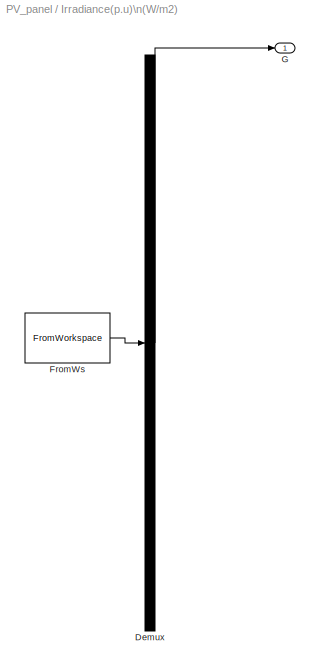
MODEL PV_panel
KIND model
BLOCK [Reference] Controlled Current\nSource  REF=fl_lib/Electrical/Electrical Sources/Controlled Current\nSource
  ClassName = controlled_current
  ComponentPath = foundation.electrical.sources.controlled_current
  DialogController = NetworkEngine.DynNeDlgSource
  FunctionWithSeparateData = off
  GeneratePreprocessorConditionals = off
  LocalVarDescs = |i|v
  LocalVarLogging = [0 0]
  LocalVarNames = |i|v
  Ports = [0, 0, 0, 0, 0, 1, 2]
  RTWMemSecDataConstants = Inherit from model
  RTWMemSecDataInternal = Inherit from model
  RTWMemSecDataParameters = Inherit from model
  RTWMemSecFuncExecute = Inherit from model
  RTWMemSecFuncInitTerm = Inherit from model
  SID = 362
  SchemaVersion = 1
  ShowPortLabels = FromPortIcon
  SourceBlock = fl_lib/Electrical/Electrical Sources/Controlled Current\nSource
  SourceType = Controlled Current\nSource
  SystemSampleTime = -1
  i_Log = off
  v_Log = off
BLOCK [Reference] Current Sensor  REF=fl_lib/Electrical/Electrical Sensors/Current Sensor
  ClassName = current
  ComponentPath = foundation.electrical.sensors.current
  DialogController = NetworkEngine.DynNeDlgSource
  FunctionWithSeparateData = off
  GeneratePreprocessorConditionals = off
  LocalVarDescs = |i1|v1
  LocalVarLogging = [0 0]
  LocalVarNames = |i1|v1
  Ports = [0, 0, 0, 0, 0, 1, 2]
  RTWMemSecDataConstants = Inherit from model
  RTWMemSecDataInternal = Inherit from model
  RTWMemSecDataParameters = Inherit from model
  RTWMemSecFuncExecute = Inherit from model
  RTWMemSecFuncInitTerm = Inherit from model
  SID = 363
  SchemaVersion = 1
  ShowPortLabels = FromPortIcon
  SourceBlock = fl_lib/Electrical/Electrical Sensors/Current Sensor
  SourceType = Current Sensor
  SystemSampleTime = -1
  i1_Log = off
  v1_Log = off
BLOCK [Reference] Diode  REF=elec_lib/Semiconductor\nDevices/Diode
  BV = Inf
  BV_unit = V
  CJ0 = 0
  CJ0_unit = pF
  C_PWL = 5
  C_PWL_unit = pF
  C_param = 1
  C_param_unit = 1
  ClassName = diode
  ComponentPath = elec.semiconductors.diode
  Cvec = [  3.5 1 0.4 ]
  Cvec_unit = pF
  DialogController = NetworkEngine.DynNeDlgSource
  FC = 0.5
  FC_unit = 1
  FunctionWithSeparateData = off
  GeneratePreprocessorConditionals = off
  Goff = 1e-08
  Goff_unit = S
  I1 = 0.07
  I12 = [  0.07 2.2 ]
  I12_unit = A
  I1_unit = A
  IS = 1.541765286972375e-008
  IS_unit = A
  LocalVarLogging = []
  Mgrad = 0.5
  Mgrad_unit = 1
  ModelType = 3
  ModelType_unit = 1
  Ports = [0, 0, 0, 0, 0, 1, 1]
  RS = 0.001
  RS_unit = Ohm
  RTWMemSecDataConstants = Inherit from model
  RTWMemSecDataInternal = Inherit from model
  RTWMemSecDataParameters = Inherit from model
  RTWMemSecFuncExecute = Inherit from model
  RTWMemSecFuncInitTerm = Inherit from model
  Ron = 0.3
  Ron_unit = Ohm
  Rz = 0.3
  Rz_unit = Ohm
  SID = 364
  SchemaVersion = 1
  ShowPortLabels = FromPortIcon
  SourceBlock = elec_lib/Semiconductor\nDevices/Diode
  SourceType = Diode
  SystemSampleTime = -1
  Tmeas = 25
  Tmeas_unit = C
  V1 = 0.7
  V12 = [  15 21 ]
  V12_unit = V
  V1_unit = V
  VJ = 1
  VJ_unit = V
  Vf = 0.6
  Vf_unit = V
  Vvec = [  0.1 10 100 ]
  Vvec_unit = V
  Vz = 50
  Vz_unit = V
  ec = 1
  ec_unit = 1
  prmExp = 1
  prmExp_unit = 1
BLOCK [Reference] Electrical Reference  REF=fl_lib/Electrical/Electrical Elements/Electrical Reference
  ClassName = reference
  ComponentPath = foundation.electrical.elements.reference
  DialogController = NetworkEngine.DynNeDlgSource
  FunctionWithSeparateData = off
  GeneratePreprocessorConditionals = off
  LocalVarDescs = |i
  LocalVarLogging = 0
  LocalVarNames = |i
  Ports = [0, 0, 0, 0, 0, 1]
  RTWMemSecDataConstants = Inherit from model
  RTWMemSecDataInternal = Inherit from model
  RTWMemSecDataParameters = Inherit from model
  RTWMemSecFuncExecute = Inherit from model
  RTWMemSecFuncInitTerm = Inherit from model
  SID = 365
  SchemaVersion = 1
  ShowPortLabels = FromPortIcon
  SourceBlock = fl_lib/Electrical/Electrical Elements/Electrical Reference
  SourceType = Electrical Reference
  SystemSampleTime = -1
  i_Log = off
BLOCK [Goto] Goto1
  GotoTag = V
  SID = 820
  TagVisibility = local
BLOCK [From] I1
  GotoTag = V
  SID = 819
BLOCK [Display] Id1
  Decimation = 1
  Lockdown = off
  Ports = [1]
  SID = 366
BLOCK [Display] Id2
  Decimation = 1
  Lockdown = off
  Ports = [1]
  SID = 367
BLOCK [Display] Id3
  Decimation = 1
  Lockdown = off
  Ports = [1]
  SID = 368
BLOCK [Display] Id5
  Decimation = 1
  Lockdown = off
  Ports = [1]
  SID = 369
BLOCK [SubSystem] Irradiance(p.u)\n(W//m2)
  ClipboardFcn = sigbuilder_block('clipboard');
  CloseFcn = sigbuilder_block('close');
  CopyFcn = sigbuilder_block('copy');
  DeleteFcn = sigbuilder_block('delete');
  FunctionWithSeparateData = off
  LoadFcn = sigbuilder_block('load');
  MaskCapabilities = slmaskedcaps(gcbh)
  MaskDescription = Sigbuilder GUI
  MaskDisplay = plot(0,0,100,100,[10,10,40,40,10],[80,20,20,80,80],[40,10],[50,50], [40,27,10],[65,72,56],[40,25,25,10],[28,28,43,43]);
  MaskHideContents = on
  MaskIconFrame = on
  MaskIconOpaque = off
  MaskIconRotate = port
  MaskIconUnits = autoscale
  MaskInitialization = if ~strcmp(get_param(bdroot(gcbh),'SimulationStatus'),'stopped') tuvar = sigbuilder_block('maskInit'); end
  MaskPortRotate = default
  MaskSelfModifiable = on
  MaskType = Sigbuilder block
  MinAlgLoopOccurrences = off
  ModelCloseFcn = sigbuilder_block('modelClose');
  NameChangeFcn = sigbuilder_block('namechange');
  Opaque = off
  OpenFcn = sigbuilder_block('open',[518.25 6 500.25 507 ]);
  Ports = [0, 1]
  PreSaveFcn = sigbuilder_block('preSave');
  PropExecContextOutsideSubsystem = off
  RTWSystemCode = Auto
  RequestExecContextInheritance = off
  SID = 370
  StartFcn = sigbuilder_block('start');
  StopFcn = sigbuilder_block('stop');
  Tag = STV Subsys
BLOCK [Demux] Irradiance(p.u)\n(W//m2)/Demux
  Outputs = 1
  Ports = [1, 1]
  SID = 370:1
  Tag = STV Demux
BLOCK [FromWorkspace] Irradiance(p.u)\n(W//m2)/FromWs
  SID = 370:2
  SampleTime = 0
  SigBuilderData = DataTag0
  Tag = STV FromWs
  VariableName = tuvar
  VnvData = DataTag1
  ZeroCross = on
BLOCK [Outport] Irradiance(p.u)\n(W//m2)/G
  IconDisplay = Port number
  SID = 370:3
  Tag = STV Outport
BLOCK [Reference] PS-Simulink\nConverter  REF=nesl_utility/PS-Simulink\nConverter
  AffineConversion = off
  DialogController = NetworkEngine.DynNeUtilDlgSource
  FunctionWithSeparateData = off
  GeneratePreprocessorConditionals = off
  LeftPortType = input
  PhysicalDomain = network_engine_domain
  Ports = [0, 1, 0, 0, 0, 1]
  RTWMemSecDataConstants = Inherit from model
  RTWMemSecDataInternal = Inherit from model
  RTWMemSecDataParameters = Inherit from model
  RTWMemSecFuncExecute = Inherit from model
  RTWMemSecFuncInitTerm = Inherit from model
  RightPortType = output
  SID = 412
  ShowPortLabels = FromPortIcon
  SourceBlock = nesl_utility/PS-Simulink\nConverter
  SourceType = PS-Simulink\nConverter
  SubClassName = ps_output
  SystemSampleTime = -1
  Unit = 1
BLOCK [Reference] PS-Simulink\nConverter1  REF=nesl_utility/PS-Simulink\nConverter
  AffineConversion = off
  DialogController = NetworkEngine.DynNeUtilDlgSource
  FunctionWithSeparateData = off
  GeneratePreprocessorConditionals = off
  LeftPortType = input
  PhysicalDomain = network_engine_domain
  Ports = [0, 1, 0, 0, 0, 1]
  RTWMemSecDataConstants = Inherit from model
  RTWMemSecDataInternal = Inherit from model
  RTWMemSecDataParameters = Inherit from model
  RTWMemSecFuncExecute = Inherit from model
  RTWMemSecFuncInitTerm = Inherit from model
  RightPortType = output
  SID = 413
  ShowPortLabels = FromPortIcon
  SourceBlock = nesl_utility/PS-Simulink\nConverter
  SourceType = PS-Simulink\nConverter
  SubClassName = ps_output
  SystemSampleTime = -1
  Unit = 1
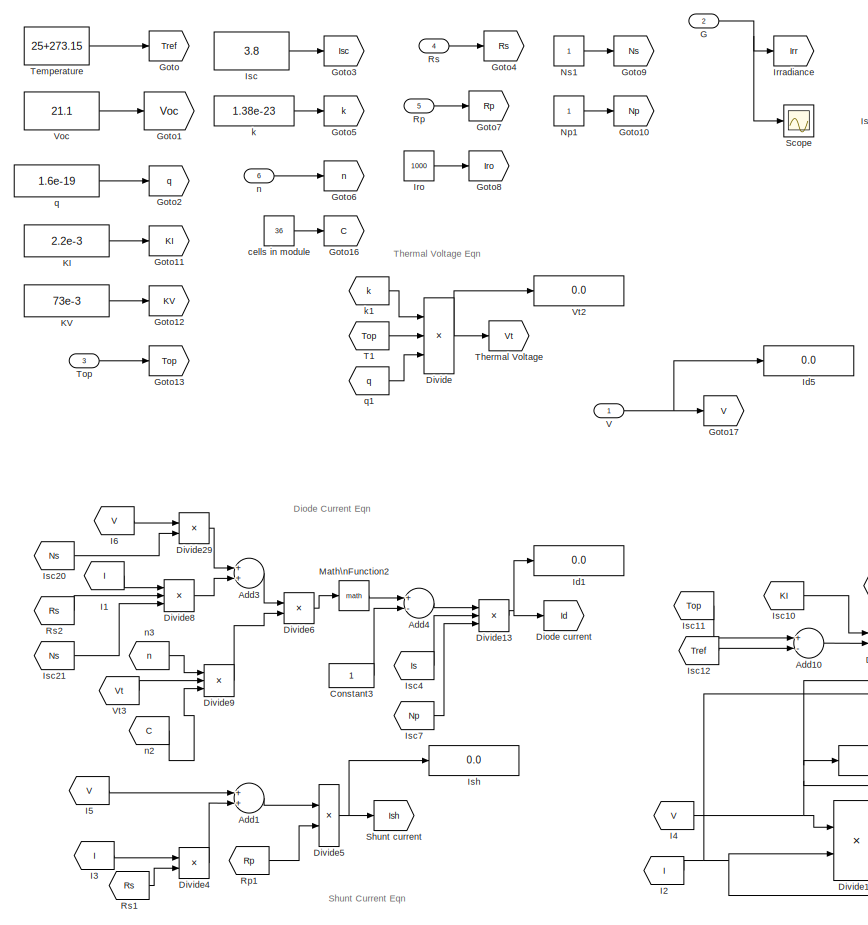
[diagram: PV panel - part 1/3, left side, full height]
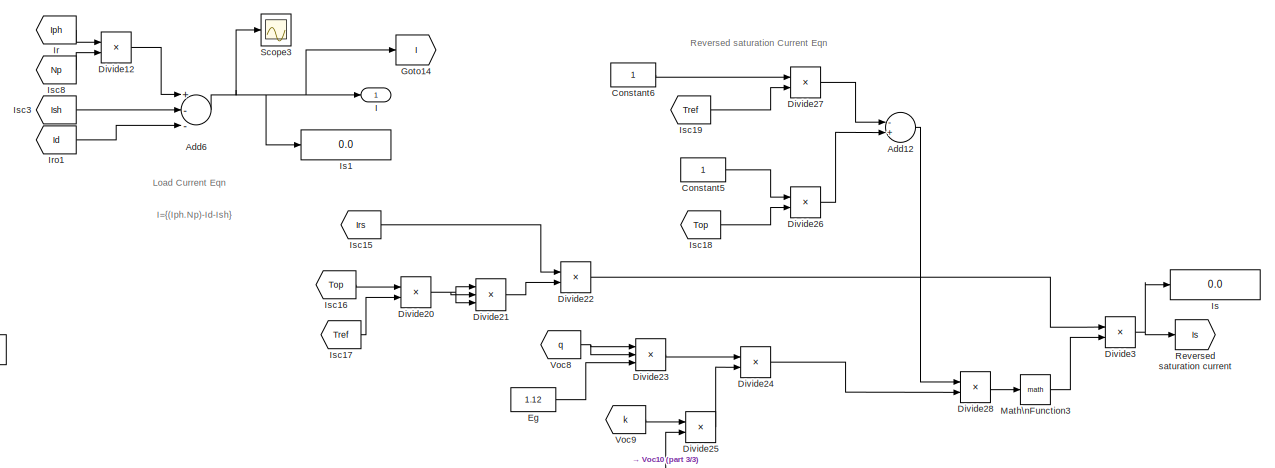
[diagram: PV panel - part 2/3, top right region]
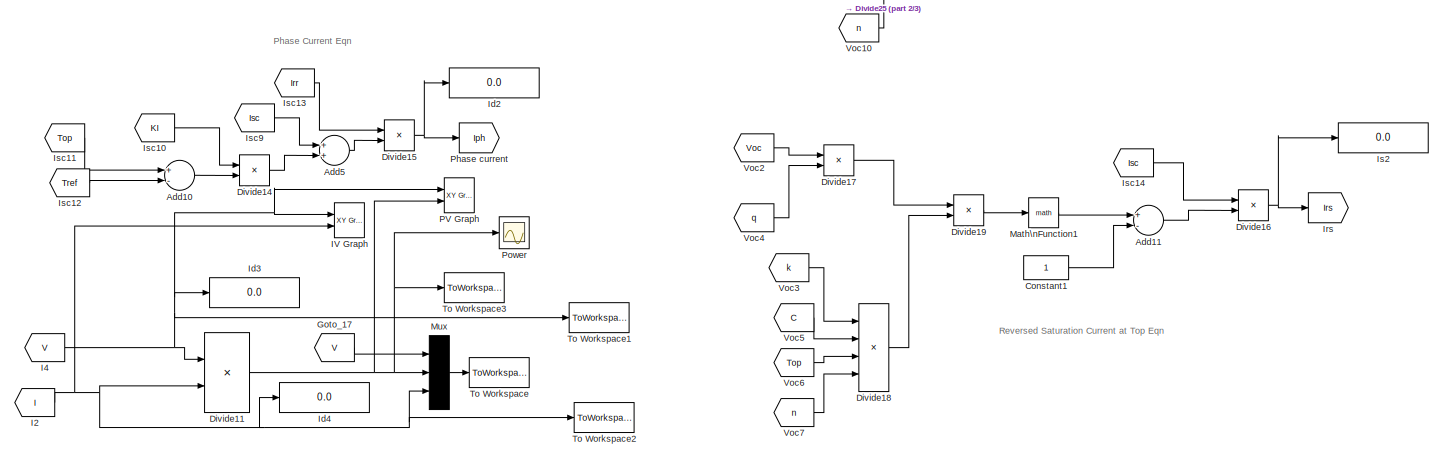
[diagram: PV panel - part 3/3, bottom center region]
BLOCK [SubSystem] PV panel
  FunctionWithSeparateData = off
  MaskHideContents = off
  MinAlgLoopOccurrences = off
  Opaque = off
  Ports = [6, 1]
  PropExecContextOutsideSubsystem = off
  RTWSystemCode = Auto
  RequestExecContextInheritance = off
  SID = 414
BLOCK [Goto] PV panel/                Reversed saturation current
  GotoTag = Is
  SID = 418
  TagVisibility = local
BLOCK [Sum] PV panel/Add1
  InputSameDT = off
  OutDataTypeStr = Inherit: Inherit via internal rule
  Ports = [2, 1]
  SID = 419
  SaturateOnIntegerOverflow = off
BLOCK [Sum] PV panel/Add10
  InputSameDT = off
  Inputs = +-
  OutDataTypeStr = Inherit: Inherit via internal rule
  Ports = [2, 1]
  SID = 420
  SaturateOnIntegerOverflow = off
BLOCK [Sum] PV panel/Add11
  InputSameDT = off
  Inputs = +-
  OutDataTypeStr = Inherit: Inherit via internal rule
  Ports = [2, 1]
  SID = 421
  SaturateOnIntegerOverflow = off
BLOCK [Sum] PV panel/Add12
  InputSameDT = off
  Inputs = -+
  OutDataTypeStr = Inherit: Inherit via internal rule
  Ports = [2, 1]
  SID = 422
  SaturateOnIntegerOverflow = off
BLOCK [Sum] PV panel/Add3
  InputSameDT = off
  OutDataTypeStr = Inherit: Inherit via internal rule
  Ports = [2, 1]
  SID = 423
  SaturateOnIntegerOverflow = off
BLOCK [Sum] PV panel/Add4
  InputSameDT = off
  Inputs = +-
  OutDataTypeStr = Inherit: Inherit via internal rule
  Ports = [2, 1]
  SID = 424
  SaturateOnIntegerOverflow = off
BLOCK [Sum] PV panel/Add5
  InputSameDT = off
  OutDataTypeStr = Inherit: Inherit via internal rule
  Ports = [2, 1]
  SID = 425
  SaturateOnIntegerOverflow = off
BLOCK [Sum] PV panel/Add6
  InputSameDT = off
  Inputs = +--
  OutDataTypeStr = Inherit: Inherit via internal rule
  Ports = [3, 1]
  SID = 426
  SaturateOnIntegerOverflow = off
BLOCK [Constant] PV panel/Constant1
  SID = 427
BLOCK [Constant] PV panel/Constant3
  SID = 428
BLOCK [Constant] PV panel/Constant5
  SID = 430
BLOCK [Constant] PV panel/Constant6
  SID = 431
BLOCK [Goto] PV panel/Diode current
  GotoTag = Id
  SID = 432
  TagVisibility = local
BLOCK [Product] PV panel/Divide
  InputSameDT = off
  Inputs = **/
  OutDataTypeStr = Inherit: Inherit via internal rule
  Ports = [3, 1]
  RndMeth = Floor
  SID = 433
  SaturateOnIntegerOverflow = off
BLOCK [Product] PV panel/Divide11
  InputSameDT = off
  Inputs = **
  OutDataTypeStr = Inherit: Inherit via internal rule
  Ports = [2, 1]
  RndMeth = Floor
  SID = 434
  SaturateOnIntegerOverflow = off
BLOCK [Product] PV panel/Divide12
  InputSameDT = off
  Inputs = **
  OutDataTypeStr = Inherit: Inherit via internal rule
  Ports = [2, 1]
  RndMeth = Floor
  SID = 435
  SaturateOnIntegerOverflow = off
BLOCK [Product] PV panel/Divide13
  InputSameDT = off
  Inputs = ***
  OutDataTypeStr = Inherit: Inherit via internal rule
  Ports = [3, 1]
  RndMeth = Floor
  SID = 436
  SaturateOnIntegerOverflow = off
BLOCK [Product] PV panel/Divide14
  InputSameDT = off
  Inputs = **
  OutDataTypeStr = Inherit: Inherit via internal rule
  Ports = [2, 1]
  RndMeth = Floor
  SID = 437
  SaturateOnIntegerOverflow = off
BLOCK [Product] PV panel/Divide15
  InputSameDT = off
  Inputs = **
  OutDataTypeStr = Inherit: Inherit via internal rule
  Ports = [2, 1]
  RndMeth = Floor
  SID = 438
  SaturateOnIntegerOverflow = off
BLOCK [Product] PV panel/Divide16
  InputSameDT = off
  Inputs = */
  OutDataTypeStr = Inherit: Inherit via internal rule
  Ports = [2, 1]
  RndMeth = Floor
  SID = 439
  SaturateOnIntegerOverflow = off
BLOCK [Product] PV panel/Divide17
  InputSameDT = off
  Inputs = **
  OutDataTypeStr = Inherit: Inherit via internal rule
  Ports = [2, 1]
  RndMeth = Floor
  SID = 440
  SaturateOnIntegerOverflow = off
BLOCK [Product] PV panel/Divide18
  InputSameDT = off
  Inputs = ****
  OutDataTypeStr = Inherit: Inherit via internal rule
  Ports = [4, 1]
  RndMeth = Floor
  SID = 441
  SaturateOnIntegerOverflow = off
BLOCK [Product] PV panel/Divide19
  InputSameDT = off
  Inputs = */
  OutDataTypeStr = Inherit: Inherit via internal rule
  Ports = [2, 1]
  RndMeth = Floor
  SID = 442
  SaturateOnIntegerOverflow = off
BLOCK [Product] PV panel/Divide20
  InputSameDT = off
  Inputs = */
  OutDataTypeStr = Inherit: Inherit via internal rule
  Ports = [2, 1]
  RndMeth = Floor
  SID = 443
  SaturateOnIntegerOverflow = off
BLOCK [Product] PV panel/Divide21
  InputSameDT = off
  Inputs = ***
  OutDataTypeStr = Inherit: Inherit via internal rule
  Ports = [3, 1]
  RndMeth = Floor
  SID = 444
  SaturateOnIntegerOverflow = off
BLOCK [Product] PV panel/Divide22
  InputSameDT = off
  Inputs = **
  OutDataTypeStr = Inherit: Inherit via internal rule
  Ports = [2, 1]
  RndMeth = Floor
  SID = 445
  SaturateOnIntegerOverflow = off
BLOCK [Product] PV panel/Divide23
  InputSameDT = off
  Inputs = ***
  OutDataTypeStr = Inherit: Inherit via internal rule
  Ports = [3, 1]
  RndMeth = Floor
  SID = 446
  SaturateOnIntegerOverflow = off
BLOCK [Product] PV panel/Divide24
  InputSameDT = off
  Inputs = */
  OutDataTypeStr = Inherit: Inherit via internal rule
  Ports = [2, 1]
  RndMeth = Floor
  SID = 447
  SaturateOnIntegerOverflow = off
BLOCK [Product] PV panel/Divide25
  InputSameDT = off
  Inputs = **
  OutDataTypeStr = Inherit: Inherit via internal rule
  Ports = [2, 1]
  RndMeth = Floor
  SID = 448
  SaturateOnIntegerOverflow = off
BLOCK [Product] PV panel/Divide26
  InputSameDT = off
  Inputs = */
  OutDataTypeStr = Inherit: Inherit via internal rule
  Ports = [2, 1]
  RndMeth = Floor
  SID = 449
  SaturateOnIntegerOverflow = off
BLOCK [Product] PV panel/Divide27
  InputSameDT = off
  Inputs = */
  OutDataTypeStr = Inherit: Inherit via internal rule
  Ports = [2, 1]
  RndMeth = Floor
  SID = 450
  SaturateOnIntegerOverflow = off
BLOCK [Product] PV panel/Divide28
  InputSameDT = off
  Inputs = **
  OutDataTypeStr = Inherit: Inherit via internal rule
  Ports = [2, 1]
  RndMeth = Floor
  SID = 451
  SaturateOnIntegerOverflow = off
BLOCK [Product] PV panel/Divide29
  InputSameDT = off
  Inputs = */
  OutDataTypeStr = Inherit: Inherit via internal rule
  Ports = [2, 1]
  RndMeth = Floor
  SID = 452
  SaturateOnIntegerOverflow = off
BLOCK [Product] PV panel/Divide3
  InputSameDT = off
  Inputs = **
  OutDataTypeStr = Inherit: Inherit via internal rule
  Ports = [2, 1]
  RndMeth = Floor
  SID = 453
  SaturateOnIntegerOverflow = off
BLOCK [Product] PV panel/Divide4
  InputSameDT = off
  Inputs = **
  OutDataTypeStr = Inherit: Inherit via internal rule
  Ports = [2, 1]
  RndMeth = Floor
  SID = 454
  SaturateOnIntegerOverflow = off
BLOCK [Product] PV panel/Divide5
  InputSameDT = off
  Inputs = */
  OutDataTypeStr = Inherit: Inherit via internal rule
  Ports = [2, 1]
  RndMeth = Floor
  SID = 455
  SaturateOnIntegerOverflow = off
BLOCK [Product] PV panel/Divide6
  InputSameDT = off
  Inputs = */
  OutDataTypeStr = Inherit: Inherit via internal rule
  Ports = [2, 1]
  RndMeth = Floor
  SID = 456
  SaturateOnIntegerOverflow = off
BLOCK [Product] PV panel/Divide8
  InputSameDT = off
  Inputs = **/
  OutDataTypeStr = Inherit: Inherit via internal rule
  Ports = [3, 1]
  RndMeth = Floor
  SID = 457
  SaturateOnIntegerOverflow = off
BLOCK [Product] PV panel/Divide9
  InputSameDT = off
  Inputs = ***
  OutDataTypeStr = Inherit: Inherit via internal rule
  Ports = [3, 1]
  RndMeth = Floor
  SID = 458
  SaturateOnIntegerOverflow = off
BLOCK [Constant] PV panel/Eg
  SID = 429
  Value = 1.12
BLOCK [Inport] PV panel/G
  IconDisplay = Port number
  Port = 2
  SID = 416
BLOCK [Goto] PV panel/Goto
  GotoTag = Tref
  SID = 459
  TagVisibility = local
BLOCK [Goto] PV panel/Goto1
  GotoTag = Voc
  SID = 460
  TagVisibility = local
BLOCK [Goto] PV panel/Goto10
  GotoTag = Np
  SID = 461
  TagVisibility = local
BLOCK [Goto] PV panel/Goto11
  GotoTag = KI
  SID = 462
  TagVisibility = local
BLOCK [Goto] PV panel/Goto12
  GotoTag = KV
  SID = 463
  TagVisibility = local
BLOCK [Goto] PV panel/Goto13
  GotoTag = Top
  SID = 464
  TagVisibility = local
BLOCK [Goto] PV panel/Goto14
  GotoTag = I
  SID = 465
  TagVisibility = local
BLOCK [Goto] PV panel/Goto16
  GotoTag = C
  SID = 467
  TagVisibility = local
BLOCK [Goto] PV panel/Goto17
  GotoTag = V
  SID = 468
  TagVisibility = local
BLOCK [Goto] PV panel/Goto2
  GotoTag = q
  SID = 469
  TagVisibility = local
BLOCK [Goto] PV panel/Goto3
  GotoTag = Isc
  SID = 470
  TagVisibility = local
BLOCK [Goto] PV panel/Goto4
  GotoTag = Rs
  SID = 471
  TagVisibility = local
BLOCK [Goto] PV panel/Goto5
  GotoTag = k
  SID = 472
  TagVisibility = local
BLOCK [Goto] PV panel/Goto6
  GotoTag = n
  SID = 473
  TagVisibility = local
BLOCK [Goto] PV panel/Goto7
  GotoTag = Rp
  SID = 474
  TagVisibility = local
BLOCK [Goto] PV panel/Goto8
  GotoTag = Iro
  SID = 475
  TagVisibility = local
BLOCK [Goto] PV panel/Goto9
  GotoTag = Ns
  SID = 476
  TagVisibility = local
BLOCK [From] PV panel/Goto_17
  GotoTag = V
  SID = 477
BLOCK [Outport] PV panel/I
  IconDisplay = Port number
  SID = 562
BLOCK [From] PV panel/I1
  GotoTag = I
  SID = 478
BLOCK [From] PV panel/I2
  GotoTag = I
  SID = 479
BLOCK [From] PV panel/I3
  GotoTag = I
  SID = 480
BLOCK [From] PV panel/I4
  GotoTag = V
  SID = 481
BLOCK [From] PV panel/I5
  GotoTag = V
  SID = 482
BLOCK [From] PV panel/I6
  GotoTag = V
  SID = 483
BLOCK [Reference] PV panel/IV Graph  REF=simulink/Sinks/XY Graph
  FunctionWithSeparateData = off
  GeneratePreprocessorConditionals = off
  Ports = [2]
  RTWMemSecDataConstants = Inherit from model
  RTWMemSecDataInternal = Inherit from model
  RTWMemSecDataParameters = Inherit from model
  RTWMemSecFuncExecute = Inherit from model
  RTWMemSecFuncInitTerm = Inherit from model
  SID = 814
  ShowPortLabels = FromPortIcon
  SourceBlock = simulink/Sinks/XY Graph
  SourceType = XY scope.
  SystemSampleTime = -1
  st = -1
  xmax = 23
  xmin = 0
  ymax = 4
  ymin = 0
BLOCK [Display] PV panel/Id1
  Decimation = 1
  Lockdown = off
  Ports = [1]
  SID = 484
BLOCK [Display] PV panel/Id2
  Decimation = 1
  Lockdown = off
  Ports = [1]
  SID = 485
BLOCK [Display] PV panel/Id3
  Decimation = 1
  Lockdown = off
  Ports = [1]
  SID = 486
BLOCK [Display] PV panel/Id4
  Decimation = 1
  Lockdown = off
  Ports = [1]
  SID = 487
BLOCK [Display] PV panel/Id5
  Decimation = 1
  Lockdown = off
  Ports = [1]
  SID = 488
BLOCK [From] PV panel/Ir
  GotoTag = Iph
  SID = 489
BLOCK [Constant] PV panel/Iro
  SID = 490
  Value = 1000
BLOCK [From] PV panel/Iro1
  GotoTag = Id
  SID = 491
BLOCK [Goto] PV panel/Irradiance
  GotoTag = Irr
  SID = 492
  TagVisibility = local
BLOCK [Goto] PV panel/Irs
  GotoTag = Irs
  SID = 493
  TagVisibility = local
BLOCK [Display] PV panel/Is
  Decimation = 1
  Lockdown = off
  Ports = [1]
  SID = 494
BLOCK [Display] PV panel/Is1
  Decimation = 1
  Lockdown = off
  Ports = [1]
  SID = 495
BLOCK [Display] PV panel/Is2
  Decimation = 1
  Lockdown = off
  Ports = [1]
  SID = 496
BLOCK [Constant] PV panel/Isc
  SID = 497
  Value = 3.8
BLOCK [From] PV panel/Isc10
  GotoTag = KI
  SID = 498
BLOCK [From] PV panel/Isc11
  GotoTag = Top
  SID = 499
BLOCK [From] PV panel/Isc12
  GotoTag = Tref
  SID = 500
BLOCK [From] PV panel/Isc13
  GotoTag = Irr
  SID = 501
BLOCK [From] PV panel/Isc14
  GotoTag = Isc
  SID = 502
BLOCK [From] PV panel/Isc15
  GotoTag = Irs
  SID = 503
BLOCK [From] PV panel/Isc16
  GotoTag = Top
  SID = 504
BLOCK [From] PV panel/Isc17
  GotoTag = Tref
  SID = 505
BLOCK [From] PV panel/Isc18
  GotoTag = Top
  SID = 506
BLOCK [From] PV panel/Isc19
  GotoTag = Tref
  SID = 507
BLOCK [From] PV panel/Isc20
  GotoTag = Ns
  SID = 508
BLOCK [From] PV panel/Isc21
  GotoTag = Ns
  SID = 509
BLOCK [From] PV panel/Isc3
  GotoTag = Ish
  SID = 510
BLOCK [From] PV panel/Isc4
  GotoTag = Is
  SID = 511
BLOCK [From] PV panel/Isc7
  GotoTag = Np
  SID = 512
BLOCK [From] PV panel/Isc8
  GotoTag = Np
  SID = 513
BLOCK [From] PV panel/Isc9
  GotoTag = Isc
  SID = 514
BLOCK [Display] PV panel/Ish
  Decimation = 1
  Lockdown = off
  Ports = [1]
  SID = 515
BLOCK [Constant] PV panel/KI
  SID = 560
  Value = 2.2e-3
BLOCK [Constant] PV panel/KV
  SID = 561
  Value = 73e-3
BLOCK [Math] PV panel/Math\nFunction1
  Ports = [1, 1]
  SID = 516
BLOCK [Math] PV panel/Math\nFunction2
  Ports = [1, 1]
  SID = 517
BLOCK [Math] PV panel/Math\nFunction3
  Ports = [1, 1]
  SID = 518
BLOCK [Mux] PV panel/Mux
  DisplayOption = bar
  Inputs = 3
  Ports = [3, 1]
  SID = 519
BLOCK [Constant] PV panel/Np1
  SID = 829
BLOCK [Constant] PV panel/Ns1
  SID = 830
BLOCK [Reference] PV panel/PV Graph  REF=simulink/Sinks/XY Graph
  FunctionWithSeparateData = off
  GeneratePreprocessorConditionals = off
  Ports = [2]
  RTWMemSecDataConstants = Inherit from model
  RTWMemSecDataInternal = Inherit from model
  RTWMemSecDataParameters = Inherit from model
  RTWMemSecFuncExecute = Inherit from model
  RTWMemSecFuncInitTerm = Inherit from model
  SID = 815
  ShowPortLabels = FromPortIcon
  SourceBlock = simulink/Sinks/XY Graph
  SourceType = XY scope.
  SystemSampleTime = -1
  st = -1
  xmax = 23
  xmin = 0
  ymax = 61
  ymin = 0
BLOCK [Goto] PV panel/Phase current 
  GotoTag = Iph
  SID = 466
  TagVisibility = local
BLOCK [Scope] PV panel/Power
  DataFormat = StructureWithTime
  Floating = off
  NumInputPorts = 1
  Ports = [1]
  SID = 522
  SampleTime = 0
  SaveName = ScopeData1
  TimeRange = 0.7
  YMax = 4e-006
  YMin = -2.5e-006
BLOCK [Inport] PV panel/Rp
  IconDisplay = Port number
  Port = 5
  SID = 822
BLOCK [From] PV panel/Rp1
  GotoTag = Rp
  SID = 524
BLOCK [Inport] PV panel/Rs
  IconDisplay = Port number
  Port = 4
  SID = 821
BLOCK [From] PV panel/Rs1
  GotoTag = Rs
  SID = 526
BLOCK [From] PV panel/Rs2
  GotoTag = Rs
  SID = 527
BLOCK [Scope] PV panel/Scope
  DataFormat = StructureWithTime
  Floating = off
  NumInputPorts = 1
  Ports = [1]
  SID = 528
  SampleTime = 0
  SaveName = ScopeData2
BLOCK [Scope] PV panel/Scope3
  DataFormat = StructureWithTime
  Floating = off
  NumInputPorts = 1
  Ports = [1]
  SID = 529
  SampleTime = 0
  YMax = 30.1303
  YMin = 30.1283
BLOCK [Goto] PV panel/Shunt current
  GotoTag = Ish
  SID = 530
  TagVisibility = local
BLOCK [From] PV panel/T1
  GotoTag = Top
  SID = 531
BLOCK [Constant] PV panel/Temperature
  SID = 532
  Value = 25+273.15
BLOCK [Goto] PV panel/Thermal Voltage
  GotoTag = Vt
  SID = 533
  TagVisibility = local
BLOCK [ToWorkspace] PV panel/To Workspace
  MaxDataPoints = inf
  Ports = [1]
  SID = 534
  SampleTime = -1
  SaveFormat = Array
  VariableName = simout
BLOCK [ToWorkspace] PV panel/To Workspace1
  MaxDataPoints = inf
  Ports = [1]
  SID = 535
  SampleTime = -1
  SaveFormat = Array
  VariableName = voltage
BLOCK [ToWorkspace] PV panel/To Workspace2
  MaxDataPoints = inf
  Ports = [1]
  SID = 536
  SampleTime = -1
  SaveFormat = Array
  VariableName = current
BLOCK [ToWorkspace] PV panel/To Workspace3
  MaxDataPoints = inf
  Ports = [1]
  SID = 537
  SampleTime = -1
  SaveFormat = Array
  VariableName = power
BLOCK [Inport] PV panel/Top
  IconDisplay = Port number
  Port = 3
  SID = 417
BLOCK [Inport] PV panel/V
  IconDisplay = Port number
  SID = 415
BLOCK [Constant] PV panel/Voc
  SID = 540
  Value = 21.1
BLOCK [From] PV panel/Voc10
  GotoTag = n
  SID = 541
BLOCK [From] PV panel/Voc2
  GotoTag = Voc
  SID = 542
BLOCK [From] PV panel/Voc3
  GotoTag = k
  SID = 543
BLOCK [From] PV panel/Voc4
  GotoTag = q
  SID = 544
BLOCK [From] PV panel/Voc5
  GotoTag = C
  SID = 545
BLOCK [From] PV panel/Voc6
  GotoTag = Top
  SID = 546
BLOCK [From] PV panel/Voc7
  GotoTag = n
  SID = 547
BLOCK [From] PV panel/Voc8
  GotoTag = q
  SID = 548
BLOCK [From] PV panel/Voc9
  GotoTag = k
  SID = 549
BLOCK [Display] PV panel/Vt2
  Decimation = 1
  Format = long_e
  Lockdown = off
  Ports = [1]
  SID = 550
BLOCK [From] PV panel/Vt3
  GotoTag = Vt
  SID = 551
BLOCK [Constant] PV panel/cells in module
  SID = 828
  Value = 36
BLOCK [Constant] PV panel/k
  SID = 553
  Value = 1.38e-23
BLOCK [From] PV panel/k1
  GotoTag = k
  SID = 554
BLOCK [Inport] PV panel/n
  IconDisplay = Port number
  Port = 6
  SID = 823
BLOCK [From] PV panel/n2
  GotoTag = C
  SID = 556
BLOCK [From] PV panel/n3
  GotoTag = n
  SID = 557
BLOCK [Constant] PV panel/q
  SID = 558
  Value = 1.6e-19
BLOCK [From] PV panel/q1
  GotoTag = q
  SID = 559
BLOCK [Reference] Ramp  REF=simulink/Sources/Ramp
  FunctionWithSeparateData = off
  GeneratePreprocessorConditionals = off
  Ports = [0, 1]
  RTWMemSecDataConstants = Inherit from model
  RTWMemSecDataInternal = Inherit from model
  RTWMemSecDataParameters = Inherit from model
  RTWMemSecFuncExecute = Inherit from model
  RTWMemSecFuncInitTerm = Inherit from model
  SID = 563
  ShowPortLabels = FromPortIcon
  SourceBlock = simulink/Sources/Ramp
  SourceType = Ramp
  SystemSampleTime = -1
  VectorParams1D = on
  X0 = 0
  slope = 7777
  start = 0
BLOCK [Constant] Rp
  SID = 825
  Value = 360.002
BLOCK [Constant] Rs
  SID = 826
  Value = 0.18
BLOCK [Reference] Simulink-PS\nConverter  REF=nesl_utility/Simulink-PS\nConverter
  AffineConversion = off
  DialogController = NetworkEngine.DynNeUtilDlgSource
  FunctionWithSeparateData = off
  GeneratePreprocessorConditionals = off
  InputFilterTimeConstant = .000001
  LeftPortType = input
  PhysicalDomain = network_engine_domain
  Ports = [1, 0, 0, 0, 0, 0, 1]
  RTWMemSecDataConstants = Inherit from model
  RTWMemSecDataInternal = Inherit from model
  RTWMemSecDataParameters = Inherit from model
  RTWMemSecFuncExecute = Inherit from model
  RTWMemSecFuncInitTerm = Inherit from model
  RightPortType = output
  SID = 567
  ShowPortLabels = FromPortIcon
  SourceBlock = nesl_utility/Simulink-PS\nConverter
  SourceType = Simulink-PS\nConverter
  SubClassName = ps_input
  SystemSampleTime = -1
  UdotUserProvided = 0
  Unit = 1
BLOCK [Reference] Simulink-PS\nConverter1  REF=nesl_utility/Simulink-PS\nConverter
  AffineConversion = off
  DialogController = NetworkEngine.DynNeUtilDlgSource
  FunctionWithSeparateData = off
  GeneratePreprocessorConditionals = off
  InputFilterTimeConstant = .000001
  LeftPortType = input
  PhysicalDomain = network_engine_domain
  Ports = [1, 0, 0, 0, 0, 0, 1]
  RTWMemSecDataConstants = Inherit from model
  RTWMemSecDataInternal = Inherit from model
  RTWMemSecDataParameters = Inherit from model
  RTWMemSecFuncExecute = Inherit from model
  RTWMemSecFuncInitTerm = Inherit from model
  RightPortType = output
  SID = 568
  ShowPortLabels = FromPortIcon
  SourceBlock = nesl_utility/Simulink-PS\nConverter
  SourceType = Simulink-PS\nConverter
  SubClassName = ps_input
  SystemSampleTime = -1
  UdotUserProvided = 0
  Unit = 1
BLOCK [Reference] Solver\nConfiguration  REF=nesl_utility/Solver\nConfiguration
  Accelerate = off
  DialogController = NetworkEngine.DynNeUtilDlgSource
  DoDC = on
  DoFixedCost = off
  FunctionWithSeparateData = off
  GeneratePreprocessorConditionals = off
  LeftPortType = input
  LinearAlgebra = Sparse
  LocalSolverChoice = NE_BACKWARD_EULER_ADVANCER
  LocalSolverSampleTime = .0001
  MaxModeIter = 2
  MaxNonlinIter = 8
  PhysicalDomain = network_engine_domain
  Ports = [0, 0, 0, 0, 0, 0, 1]
  Profile = off
  RTWMemSecDataConstants = Inherit from model
  RTWMemSecDataInternal = Inherit from model
  RTWMemSecDataParameters = Inherit from model
  RTWMemSecFuncExecute = Inherit from model
  RTWMemSecFuncInitTerm = Inherit from model
  ResidualTolerance = 1e-8
  RightPortType = generic
  SID = 569
  ShowPortLabels = FromPortIcon
  SourceBlock = nesl_utility/Solver\nConfiguration
  SourceType = Solver\nConfiguration
  SubClassName = solver
  SystemSampleTime = -1
  UseLocalSampling = off
  UseLocalSolver = on
BLOCK [Constant] Temperature_op
  SID = 570
  Value = 25+273.15
BLOCK [Reference] Variable Resistor  REF=fl_lib/Electrical/Electrical Elements/Variable Resistor
  ClassName = variable_resistor
  ComponentPath = foundation.electrical.elements.variable_resistor
  DialogController = NetworkEngine.DynNeDlgSource
  FunctionWithSeparateData = off
  GeneratePreprocessorConditionals = off
  LocalVarDescs = |i|v
  LocalVarLogging = [0 0]
  LocalVarNames = |i|v
  Ports = [0, 0, 0, 0, 0, 2, 1]
  RTWMemSecDataConstants = Inherit from model
  RTWMemSecDataInternal = Inherit from model
  RTWMemSecDataParameters = Inherit from model
  RTWMemSecFuncExecute = Inherit from model
  RTWMemSecFuncInitTerm = Inherit from model
  Rmin = 0
  Rmin_unit = Ohm
  SID = 572
  SchemaVersion = 1
  ShowPortLabels = FromPortIcon
  SourceBlock = fl_lib/Electrical/Electrical Elements/Variable Resistor
  SourceType = Variable Resistor
  SystemSampleTime = -1
  i_Log = off
  v_Log = off
BLOCK [Reference] Voltage Sensor  REF=fl_lib/Electrical/Electrical Sensors/Voltage Sensor
  ClassName = voltage
  ComponentPath = foundation.electrical.sensors.voltage
  DialogController = NetworkEngine.DynNeDlgSource
  FunctionWithSeparateData = off
  GeneratePreprocessorConditionals = off
  LocalVarDescs = |i1|v1
  LocalVarLogging = [0 0]
  LocalVarNames = |i1|v1
  Ports = [0, 0, 0, 0, 0, 1, 2]
  RTWMemSecDataConstants = Inherit from model
  RTWMemSecDataInternal = Inherit from model
  RTWMemSecDataParameters = Inherit from model
  RTWMemSecFuncExecute = Inherit from model
  RTWMemSecFuncInitTerm = Inherit from model
  SID = 573
  SchemaVersion = 1
  ShowPortLabels = FromPortIcon
  SourceBlock = fl_lib/Electrical/Electrical Sensors/Voltage Sensor
  SourceType = Voltage Sensor
  SystemSampleTime = -1
  i1_Log = off
  v1_Log = off
BLOCK [Constant] n
  SID = 827
  Value = 1.36
ANNOTATION (root): Prepared by: Shivananda Pukhrem (<email>)\n 60 watts_36 cells_PV panel_Solarex MSX-60_4th_May_2013
ANNOTATION PV panel: Diode Current Eqn
ANNOTATION PV panel: I={(Iph.Np)-Id-Ish}
ANNOTATION PV panel: Load Current Eqn
ANNOTATION PV panel: Phase Current Eqn
ANNOTATION PV panel: Reversed Saturation Current at Top Eqn
ANNOTATION PV panel: Reversed saturation Current Eqn
ANNOTATION PV panel: Shunt Current Eqn
ANNOTATION PV panel: Thermal Voltage Eqn
LINE I1:1 -> PV panel:1
LINE Irradiance(p.u)\n(W//m2)/Demux:1 -> Irradiance(p.u)\n(W//m2)/G:1
LINE Irradiance(p.u)\n(W//m2)/FromWs:1 -> Irradiance(p.u)\n(W//m2)/Demux:1
LINE Irradiance(p.u)\n(W//m2):1 -> PV panel:2
LINE PS-Simulink\nConverter1:1 -> Id1:1
NET PS-Simulink\nConverter:1 -> Goto1:1, Id2:1
LINE PV panel/Add10:1 -> PV panel/Divide14:2
LINE PV panel/Add11:1 -> PV panel/Divide16:2
LINE PV panel/Add12:1 -> PV panel/Divide28:1
LINE PV panel/Add1:1 -> PV panel/Divide5:1
LINE PV panel/Add3:1 -> PV panel/Divide6:1
LINE PV panel/Add4:1 -> PV panel/Divide13:1
LINE PV panel/Add5:1 -> PV panel/Divide15:2
NET PV panel/Add6:1 -> PV panel/Goto14:1, PV panel/I:1, PV panel/Is1:1, PV panel/Scope3:1
LINE PV panel/Constant1:1 -> PV panel/Add11:2
LINE PV panel/Constant3:1 -> PV panel/Add4:2
LINE PV panel/Constant5:1 -> PV panel/Divide26:1
LINE PV panel/Constant6:1 -> PV panel/Divide27:1
NET PV panel/Divide11:1 -> PV panel/Mux:2, PV panel/PV Graph:2, PV panel/Power:1, PV panel/To Workspace3:1
LINE PV panel/Divide12:1 -> PV panel/Add6:1
NET PV panel/Divide13:1 -> PV panel/Diode current:1, PV panel/Id1:1
LINE PV panel/Divide14:1 -> PV panel/Add5:2
NET PV panel/Divide15:1 -> PV panel/Id2:1, PV panel/Phase current :1
NET PV panel/Divide16:1 -> PV panel/Irs:1, PV panel/Is2:1
LINE PV panel/Divide17:1 -> PV panel/Divide19:1
LINE PV panel/Divide18:1 -> PV panel/Divide19:2
LINE PV panel/Divide19:1 -> PV panel/Math\nFunction1:1
NET PV panel/Divide20:1 -> PV panel/Divide21:1, PV panel/Divide21:2, PV panel/Divide21:3
LINE PV panel/Divide21:1 -> PV panel/Divide22:2
LINE PV panel/Divide22:1 -> PV panel/Divide3:1
LINE PV panel/Divide23:1 -> PV panel/Divide24:1
LINE PV panel/Divide24:1 -> PV panel/Divide28:2
LINE PV panel/Divide25:1 -> PV panel/Divide24:2
LINE PV panel/Divide26:1 -> PV panel/Add12:2
LINE PV panel/Divide27:1 -> PV panel/Add12:1
LINE PV panel/Divide28:1 -> PV panel/Math\nFunction3:1
LINE PV panel/Divide29:1 -> PV panel/Add3:1
NET PV panel/Divide3:1 -> PV panel/                Reversed saturation current:1, PV panel/Is:1
LINE PV panel/Divide4:1 -> PV panel/Add1:2
NET PV panel/Divide5:1 -> PV panel/Ish:1, PV panel/Shunt current:1
LINE PV panel/Divide6:1 -> PV panel/Math\nFunction2:1
LINE PV panel/Divide8:1 -> PV panel/Add3:2
LINE PV panel/Divide9:1 -> PV panel/Divide6:2
NET PV panel/Divide:1 -> PV panel/Thermal Voltage:1, PV panel/Vt2:1
LINE PV panel/Eg:1 -> PV panel/Divide23:3
NET PV panel/G:1 -> PV panel/Irradiance:1, PV panel/Scope:1
LINE PV panel/Goto_17:1 -> PV panel/Mux:1
LINE PV panel/I1:1 -> PV panel/Divide8:1
NET PV panel/I2:1 -> PV panel/Divide11:2, PV panel/IV Graph:2, PV panel/Id4:1, PV panel/Mux:3, PV panel/To Workspace2:1
LINE PV panel/I3:1 -> PV panel/Divide4:1
NET PV panel/I4:1 -> PV panel/Divide11:1, PV panel/IV Graph:1, PV panel/Id3:1, PV panel/PV Graph:1, PV panel/To Workspace1:1
LINE PV panel/I5:1 -> PV panel/Add1:1
LINE PV panel/I6:1 -> PV panel/Divide29:1
LINE PV panel/Ir:1 -> PV panel/Divide12:1
LINE PV panel/Iro1:1 -> PV panel/Add6:3
LINE PV panel/Iro:1 -> PV panel/Goto8:1
LINE PV panel/Isc10:1 -> PV panel/Divide14:1
LINE PV panel/Isc11:1 -> PV panel/Add10:1
LINE PV panel/Isc12:1 -> PV panel/Add10:2
LINE PV panel/Isc13:1 -> PV panel/Divide15:1
LINE PV panel/Isc14:1 -> PV panel/Divide16:1
LINE PV panel/Isc15:1 -> PV panel/Divide22:1
LINE PV panel/Isc16:1 -> PV panel/Divide20:1
LINE PV panel/Isc17:1 -> PV panel/Divide20:2
LINE PV panel/Isc18:1 -> PV panel/Divide26:2
LINE PV panel/Isc19:1 -> PV panel/Divide27:2
LINE PV panel/Isc20:1 -> PV panel/Divide29:2
LINE PV panel/Isc21:1 -> PV panel/Divide8:3
LINE PV panel/Isc3:1 -> PV panel/Add6:2
LINE PV panel/Isc4:1 -> PV panel/Divide13:2
LINE PV panel/Isc7:1 -> PV panel/Divide13:3
LINE PV panel/Isc8:1 -> PV panel/Divide12:2
LINE PV panel/Isc9:1 -> PV panel/Add5:1
LINE PV panel/Isc:1 -> PV panel/Goto3:1
LINE PV panel/KI:1 -> PV panel/Goto11:1
LINE PV panel/KV:1 -> PV panel/Goto12:1
LINE PV panel/Math\nFunction1:1 -> PV panel/Add11:1
LINE PV panel/Math\nFunction2:1 -> PV panel/Add4:1
LINE PV panel/Math\nFunction3:1 -> PV panel/Divide3:2
LINE PV panel/Mux:1 -> PV panel/To Workspace:1
LINE PV panel/Np1:1 -> PV panel/Goto10:1
LINE PV panel/Ns1:1 -> PV panel/Goto9:1
LINE PV panel/Rp1:1 -> PV panel/Divide5:2
LINE PV panel/Rp:1 -> PV panel/Goto7:1
LINE PV panel/Rs1:1 -> PV panel/Divide4:2
LINE PV panel/Rs2:1 -> PV panel/Divide8:2
LINE PV panel/Rs:1 -> PV panel/Goto4:1
LINE PV panel/T1:1 -> PV panel/Divide:2
LINE PV panel/Temperature:1 -> PV panel/Goto:1
LINE PV panel/Top:1 -> PV panel/Goto13:1
NET PV panel/V:1 -> PV panel/Goto17:1, PV panel/Id5:1
LINE PV panel/Voc10:1 -> PV panel/Divide25:2
LINE PV panel/Voc2:1 -> PV panel/Divide17:1
LINE PV panel/Voc3:1 -> PV panel/Divide18:1
LINE PV panel/Voc4:1 -> PV panel/Divide17:2
LINE PV panel/Voc5:1 -> PV panel/Divide18:2
LINE PV panel/Voc6:1 -> PV panel/Divide18:3
LINE PV panel/Voc7:1 -> PV panel/Divide18:4
NET PV panel/Voc8:1 -> PV panel/Divide23:1, PV panel/Divide23:2
LINE PV panel/Voc9:1 -> PV panel/Divide25:1
LINE PV panel/Voc:1 -> PV panel/Goto1:1
LINE PV panel/Vt3:1 -> PV panel/Divide9:2
LINE PV panel/cells in module:1 -> PV panel/Goto16:1
LINE PV panel/k1:1 -> PV panel/Divide:1
LINE PV panel/k:1 -> PV panel/Goto5:1
LINE PV panel/n2:1 -> PV panel/Divide9:3
LINE PV panel/n3:1 -> PV panel/Divide9:1
LINE PV panel/n:1 -> PV panel/Goto6:1
LINE PV panel/q1:1 -> PV panel/Divide:3
LINE PV panel/q:1 -> PV panel/Goto2:1
NET PV panel:1 -> Id5:1, Simulink-PS\nConverter1:1
NET Ramp:1 -> Id3:1, Simulink-PS\nConverter:1
LINE Rp:1 -> PV panel:5
LINE Rs:1 -> PV panel:4
LINE Temperature_op:1 -> PV panel:3
LINE n:1 -> PV panel:6
PNET net1: Controlled Current\nSource:LConn1 -- Diode:LConn1 -- Solver\nConfiguration:RConn1
PLINE Controlled Current\nSource:RConn1 -- Simulink-PS\nConverter1:RConn1
PNET net2: Controlled Current\nSource:RConn2 -- Electrical Reference:LConn1 -- Variable Resistor:RConn1 -- Voltage Sensor:RConn2
PLINE Current Sensor:LConn1 -- Diode:RConn1
PLINE Current Sensor:RConn1 -- PS-Simulink\nConverter1:LConn1
PNET net3: Current Sensor:RConn2 -- Variable Resistor:LConn2 -- Voltage Sensor:LConn1
PLINE PS-Simulink\nConverter:LConn1 -- Voltage Sensor:RConn1
PLINE Simulink-PS\nConverter:RConn1 -- Variable Resistor:LConn1
note: NET lines group one-source signal fan-out (src -> all destinations, sorted); 1:1 wires keep LINE; PNET lines group multi-terminal physical nets as a canonical sorted terminal list (undirected conserving connections); 2-terminal nets keep the pairwise PLINE form
